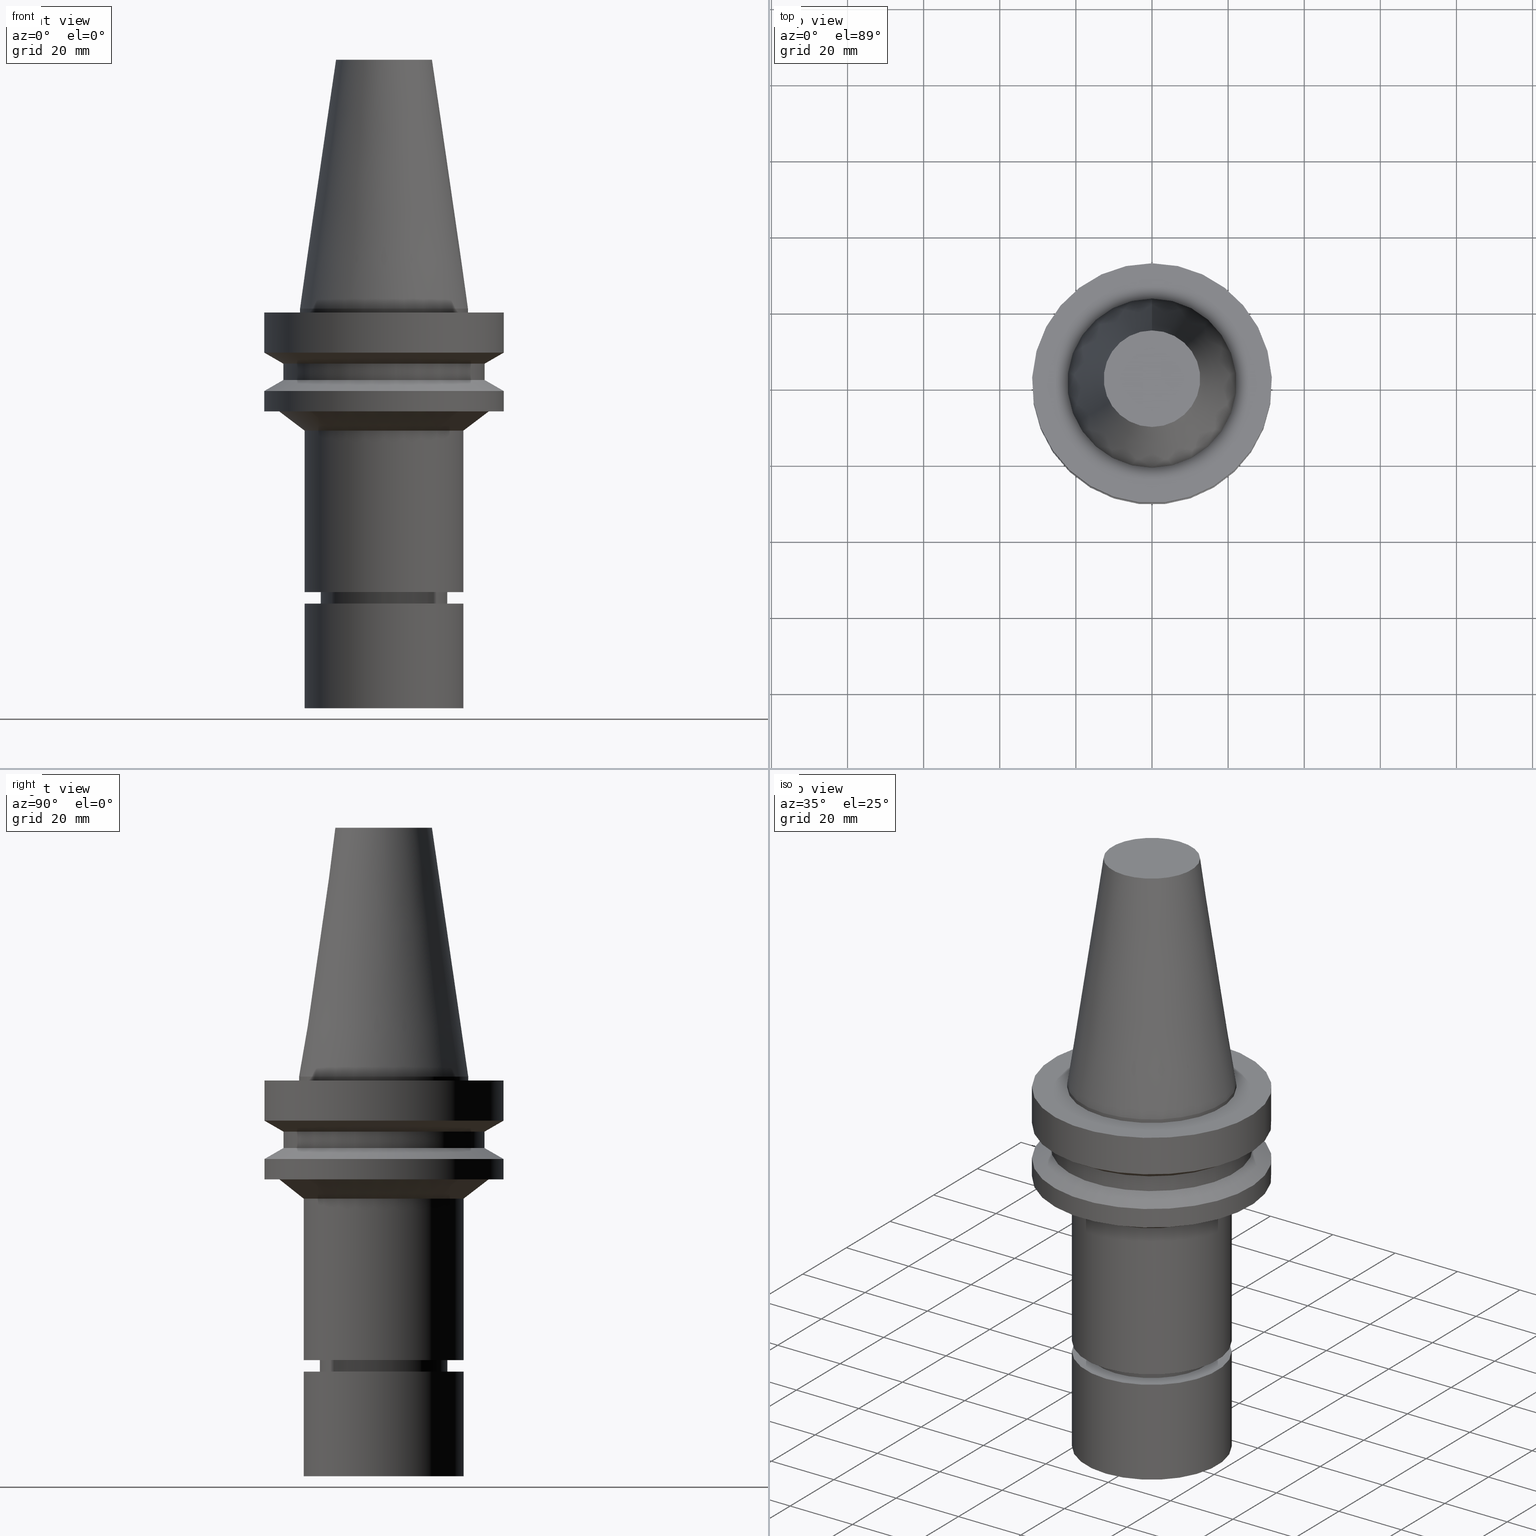
[diagram: canonical four-view strip — front | top / right | iso, engineering-drawing reading convention]
A machine part, canonical four-view strip (front | top / right | iso — engineering-drawing reading convention). The complete STEP part file that produces these views, byte-faithful:
ISO-10303-21;
HEADER;
FILE_DESCRIPTION((''),'1');
FILE_NAME('V:/90_\X2\53D65F9730C730FC30BF\X0\/00_\X2\6DE18DEF30C730FC30BF\X0\/ALL/BBT-BKUS\X2\FF76FF80FF9BFF78FF9E752852A05DE556F3\X0\201801/BBT40-MEGAER/BBT40-MEGAER25-105NL.stp','2018-02-07T02:19:38',(''),(''),'Spatial Interop R21 SP3','Kubotek KeyCreator 2011 V10.0.2 (22737)',' ');
FILE_SCHEMA(('automotive_design'));
ENDSEC;
DATA;
#1=MECHANICAL_DESIGN_GEOMETRIC_PRESENTATION_REPRESENTATION(' ',(#14,#15,#16,#17,#18,#19,#20,#21,#22,#23,#24,#25,#26,#27,#28,#29,#30,#31,#32,#33,#34,#35,#36,#37,#38,#39,#40,#41,#42,#43,#44,#45,#46,#47,#48,#49,#50,#51,#52,#53,#54,#55),#10);
#2=PRODUCT_DEFINITION_CONTEXT('',#56,'design');
#3=APPLICATION_PROTOCOL_DEFINITION('INTERNATIONAL STANDARD','automotive_design',1994,#56);
#4=PRODUCT_CATEGORY_RELATIONSHIP('NONE','NONE',#57,#58);
#5=SHAPE_DEFINITION_REPRESENTATION(#59,#60);
#6=PRODUCT_DEFINITION_CONTEXT('',#61,'design');
#7=APPLICATION_PROTOCOL_DEFINITION('INTERNATIONAL STANDARD','automotive_design',1994,#61);
#8=PRODUCT_CATEGORY_RELATIONSHIP('NONE','NONE',#62,#63);
#9=SHAPE_DEFINITION_REPRESENTATION(#64,#65);
#10= (GEOMETRIC_REPRESENTATION_CONTEXT(3)GLOBAL_UNCERTAINTY_ASSIGNED_CONTEXT((#68))GLOBAL_UNIT_ASSIGNED_CONTEXT((#70,#71,#72))REPRESENTATION_CONTEXT('NONE','WORKSPACE'));
#14=STYLED_ITEM('',(#74,#75),#76);
#15=STYLED_ITEM('',(#77),#78);
#16=STYLED_ITEM('',(#79,#80),#81);
#17=STYLED_ITEM('',(#82),#83);
#18=STYLED_ITEM('',(#84,#85),#86);
#19=STYLED_ITEM('',(#87,#88),#89);
#20=STYLED_ITEM('',(#90,#91),#92);
#21=STYLED_ITEM('',(#93,#94),#95);
#22=STYLED_ITEM('',(#96,#97),#98);
#23=STYLED_ITEM('',(#99),#100);
#24=STYLED_ITEM('',(#101),#102);
#25=STYLED_ITEM('',(#103),#104);
#26=STYLED_ITEM('',(#105),#106);
#27=STYLED_ITEM('',(#107),#108);
#28=STYLED_ITEM('',(#109),#110);
#29=STYLED_ITEM('',(#111,#112),#113);
#30=STYLED_ITEM('',(#114,#115),#116);
#31=STYLED_ITEM('',(#117,#118),#119);
#32=STYLED_ITEM('',(#120,#121),#122);
#33=STYLED_ITEM('',(#123),#124);
#34=STYLED_ITEM('',(#125),#126);
#35=STYLED_ITEM('',(#127,#128),#129);
#36=STYLED_ITEM('',(#130,#131),#132);
#37=STYLED_ITEM('',(#133,#134),#135);
#38=STYLED_ITEM('',(#136,#137),#138);
#39=STYLED_ITEM('',(#139),#140);
#40=STYLED_ITEM('',(#141,#142),#143);
#41=STYLED_ITEM('',(#144),#145);
#42=STYLED_ITEM('',(#146,#147),#148);
#43=STYLED_ITEM('',(#149,#150),#151);
#44=STYLED_ITEM('',(#152,#153),#154);
#45=STYLED_ITEM('',(#155),#156);
#46=STYLED_ITEM('',(#157),#158);
#47=STYLED_ITEM('',(#159),#160);
#48=STYLED_ITEM('',(#161),#162);
#49=STYLED_ITEM('',(#163),#164);
#50=STYLED_ITEM('',(#165),#166);
#51=STYLED_ITEM('',(#167,#168),#169);
#52=STYLED_ITEM('',(#170),#171);
#53=STYLED_ITEM('',(#172,#173),#174);
#54=STYLED_ITEM('',(#175,#176),#177);
#55=STYLED_ITEM('',(#178,#179),#180);
#56=APPLICATION_CONTEXT(' ');
#57=PRODUCT_CATEGORY('part','NONE');
#58=PRODUCT_RELATED_PRODUCT_CATEGORY('detail',' ',(#181));
#59=PRODUCT_DEFINITION_SHAPE('NONE','NONE',#182);
#60=ADVANCED_BREP_SHAPE_REPRESENTATION('Unnamed[1]',(#174,#183),#10);
#61=APPLICATION_CONTEXT(' ');
#62=PRODUCT_CATEGORY('part','NONE');
#63=PRODUCT_RELATED_PRODUCT_CATEGORY('detail',' ',(#184));
#64=PRODUCT_DEFINITION_SHAPE('NONE','NONE',#185);
#65=ADVANCED_BREP_SHAPE_REPRESENTATION('Unnamed[1]',(#76,#186),#10);
#68=UNCERTAINTY_MEASURE_WITH_UNIT(LENGTH_MEASURE(1.0E-006),#70,'','');
#70= (CONVERSION_BASED_UNIT('MILLIMETRE',#189)LENGTH_UNIT()NAMED_UNIT(#192));
#71= (NAMED_UNIT(#194)PLANE_ANGLE_UNIT()SI_UNIT($,.RADIAN.));
#72= (NAMED_UNIT(#194)SOLID_ANGLE_UNIT()SI_UNIT($,.STERADIAN.));
#74=PRESENTATION_STYLE_ASSIGNMENT((#200));
#75=PRESENTATION_STYLE_ASSIGNMENT((#201));
#76=MANIFOLD_SOLID_BREP('Unnamed[1]',#202);
#77=PRESENTATION_STYLE_ASSIGNMENT((#203));
#78=EDGE_CURVE('Unnamed[1]',#204,#204,#205,.T.);
#79=PRESENTATION_STYLE_ASSIGNMENT((#206));
#80=PRESENTATION_STYLE_ASSIGNMENT((#207));
#81=ADVANCED_FACE('Unnamed[1]',(#208),#209,.T.);
#82=PRESENTATION_STYLE_ASSIGNMENT((#210));
#83=EDGE_CURVE('Unnamed[1]',#211,#211,#212,.T.);
#84=PRESENTATION_STYLE_ASSIGNMENT((#213));
#85=PRESENTATION_STYLE_ASSIGNMENT((#214));
#86=ADVANCED_FACE('Unnamed[1]',(#215),#216,.T.);
#87=PRESENTATION_STYLE_ASSIGNMENT((#217));
#88=PRESENTATION_STYLE_ASSIGNMENT((#218));
#89=ADVANCED_FACE('Unnamed[1]',(#219),#220,.T.);
#90=PRESENTATION_STYLE_ASSIGNMENT((#221));
#91=PRESENTATION_STYLE_ASSIGNMENT((#222));
#92=ADVANCED_FACE('Unnamed[1]',(#223,#224),#225,.T.);
#93=PRESENTATION_STYLE_ASSIGNMENT((#226));
#94=PRESENTATION_STYLE_ASSIGNMENT((#227));
#95=ADVANCED_FACE('Unnamed[1]',(#228,#229),#230,.T.);
#96=PRESENTATION_STYLE_ASSIGNMENT((#231));
#97=PRESENTATION_STYLE_ASSIGNMENT((#232));
#98=ADVANCED_FACE('Unnamed[1]',(#233,#234),#235,.T.);
#99=PRESENTATION_STYLE_ASSIGNMENT((#236));
#100=EDGE_CURVE('Unnamed[1]',#237,#237,#238,.T.);
#101=PRESENTATION_STYLE_ASSIGNMENT((#239));
#102=EDGE_CURVE('Unnamed[1]',#240,#240,#241,.T.);
#103=PRESENTATION_STYLE_ASSIGNMENT((#242));
#104=EDGE_CURVE('Unnamed[1]',#243,#243,#244,.T.);
#105=PRESENTATION_STYLE_ASSIGNMENT((#245));
#106=EDGE_CURVE('Unnamed[1]',#246,#246,#247,.T.);
#107=PRESENTATION_STYLE_ASSIGNMENT((#248));
#108=EDGE_CURVE('Unnamed[1]',#249,#249,#250,.T.);
#109=PRESENTATION_STYLE_ASSIGNMENT((#251));
#110=EDGE_CURVE('Unnamed[1]',#252,#252,#253,.T.);
#111=PRESENTATION_STYLE_ASSIGNMENT((#254));
#112=PRESENTATION_STYLE_ASSIGNMENT((#255));
#113=ADVANCED_FACE('Unnamed[1]',(#256),#257,.T.);
#114=PRESENTATION_STYLE_ASSIGNMENT((#258));
#115=PRESENTATION_STYLE_ASSIGNMENT((#259));
#116=ADVANCED_FACE('Unnamed[1]',(#260,#261),#262,.T.);
#117=PRESENTATION_STYLE_ASSIGNMENT((#263));
#118=PRESENTATION_STYLE_ASSIGNMENT((#264));
#119=ADVANCED_FACE('Unnamed[1]',(#265,#266),#267,.T.);
#120=PRESENTATION_STYLE_ASSIGNMENT((#268));
#121=PRESENTATION_STYLE_ASSIGNMENT((#269));
#122=ADVANCED_FACE('Unnamed[1]',(#270,#271),#272,.T.);
#123=PRESENTATION_STYLE_ASSIGNMENT((#273));
#124=EDGE_CURVE('Unnamed[1]',#274,#274,#275,.T.);
#125=PRESENTATION_STYLE_ASSIGNMENT((#276));
#126=EDGE_CURVE('Unnamed[1]',#277,#277,#278,.T.);
#127=PRESENTATION_STYLE_ASSIGNMENT((#279));
#128=PRESENTATION_STYLE_ASSIGNMENT((#280));
#129=ADVANCED_FACE('Unnamed[1]',(#281,#282),#283,.T.);
#130=PRESENTATION_STYLE_ASSIGNMENT((#284));
#131=PRESENTATION_STYLE_ASSIGNMENT((#285));
#132=ADVANCED_FACE('Unnamed[1]',(#286,#287),#288,.T.);
#133=PRESENTATION_STYLE_ASSIGNMENT((#289));
#134=PRESENTATION_STYLE_ASSIGNMENT((#290));
#135=ADVANCED_FACE('Unnamed[1]',(#291,#292),#293,.T.);
#136=PRESENTATION_STYLE_ASSIGNMENT((#294));
#137=PRESENTATION_STYLE_ASSIGNMENT((#295));
#138=ADVANCED_FACE('Unnamed[1]',(#296,#297),#298,.T.);
#139=PRESENTATION_STYLE_ASSIGNMENT((#299));
#140=EDGE_CURVE('Unnamed[1]',#300,#300,#301,.T.);
#141=PRESENTATION_STYLE_ASSIGNMENT((#302));
#142=PRESENTATION_STYLE_ASSIGNMENT((#303));
#143=ADVANCED_FACE('Unnamed[1]',(#304,#305),#306,.T.);
#144=PRESENTATION_STYLE_ASSIGNMENT((#307));
#145=EDGE_CURVE('Unnamed[1]',#308,#308,#309,.T.);
#146=PRESENTATION_STYLE_ASSIGNMENT((#310));
#147=PRESENTATION_STYLE_ASSIGNMENT((#311));
#148=ADVANCED_FACE('Unnamed[1]',(#312,#313),#314,.T.);
#149=PRESENTATION_STYLE_ASSIGNMENT((#315));
#150=PRESENTATION_STYLE_ASSIGNMENT((#316));
#151=ADVANCED_FACE('Unnamed[1]',(#317,#318),#319,.T.);
#152=PRESENTATION_STYLE_ASSIGNMENT((#320));
#153=PRESENTATION_STYLE_ASSIGNMENT((#321));
#154=ADVANCED_FACE('Unnamed[1]',(#322,#323),#324,.T.);
#155=PRESENTATION_STYLE_ASSIGNMENT((#325));
#156=EDGE_CURVE('Unnamed[1]',#326,#326,#327,.T.);
#157=PRESENTATION_STYLE_ASSIGNMENT((#328));
#158=EDGE_CURVE('Unnamed[1]',#329,#329,#330,.T.);
#159=PRESENTATION_STYLE_ASSIGNMENT((#331));
#160=EDGE_CURVE('Unnamed[1]',#332,#332,#333,.T.);
#161=PRESENTATION_STYLE_ASSIGNMENT((#334));
#162=EDGE_CURVE('Unnamed[1]',#335,#335,#336,.T.);
#163=PRESENTATION_STYLE_ASSIGNMENT((#337));
#164=EDGE_CURVE('Unnamed[1]',#338,#338,#339,.T.);
#165=PRESENTATION_STYLE_ASSIGNMENT((#340));
#166=EDGE_CURVE('Unnamed[1]',#341,#341,#342,.T.);
#167=PRESENTATION_STYLE_ASSIGNMENT((#343));
#168=PRESENTATION_STYLE_ASSIGNMENT((#344));
#169=ADVANCED_FACE('Unnamed[1]',(#345,#346),#347,.T.);
#170=PRESENTATION_STYLE_ASSIGNMENT((#348));
#171=EDGE_CURVE('Unnamed[1]',#349,#349,#350,.T.);
#172=PRESENTATION_STYLE_ASSIGNMENT((#351));
#173=PRESENTATION_STYLE_ASSIGNMENT((#352));
#174=MANIFOLD_SOLID_BREP('Unnamed[1]',#353);
#175=PRESENTATION_STYLE_ASSIGNMENT((#354));
#176=PRESENTATION_STYLE_ASSIGNMENT((#355));
#177=ADVANCED_FACE('Unnamed[1]',(#356,#357),#358,.T.);
#178=PRESENTATION_STYLE_ASSIGNMENT((#359));
#179=PRESENTATION_STYLE_ASSIGNMENT((#360));
#180=ADVANCED_FACE('Unnamed[1]',(#361,#362),#363,.T.);
#181=PRODUCT('Unnamed[1]','Unnamed[1]','PART-Unnamed[1]-DESC',(#364));
#182=PRODUCT_DEFINITION('NONE','NONE',#365,#2);
#183=AXIS2_PLACEMENT_3D('',#366,#367,#368);
#184=PRODUCT('Unnamed[1]','Unnamed[1]','PART-Unnamed[1]-DESC',(#369));
#185=PRODUCT_DEFINITION('NONE','NONE',#370,#6);
#186=AXIS2_PLACEMENT_3D('',#371,#372,#373);
#189=LENGTH_MEASURE_WITH_UNIT(LENGTH_MEASURE(1.0),#374);
#192=DIMENSIONAL_EXPONENTS(1.0,0.0,0.0,0.0,0.0,0.0,0.0);
#194=DIMENSIONAL_EXPONENTS(0.0,0.0,0.0,0.0,0.0,0.0,0.0);
#200=SURFACE_STYLE_USAGE(.BOTH.,#375);
#201=CURVE_STYLE('',#376,POSITIVE_LENGTH_MEASURE(1000.0),#377);
#202=CLOSED_SHELL('',(#113,#86,#143));
#203=CURVE_STYLE('',#378,POSITIVE_LENGTH_MEASURE(1000.0),#379);
#204=VERTEX_POINT('',#380);
#205=CIRCLE('',#381,26.5);
#206=SURFACE_STYLE_USAGE(.BOTH.,#382);
#207=CURVE_STYLE('',#383,POSITIVE_LENGTH_MEASURE(1000.0),#384);
#208=FACE_OUTER_BOUND('',#385,.T.);
#209=PLANE('',#386);
#210=CURVE_STYLE('',#387,POSITIVE_LENGTH_MEASURE(1000.0),#388);
#211=VERTEX_POINT('',#389);
#212=CIRCLE('',#390,21.0000000000004);
#213=SURFACE_STYLE_USAGE(.BOTH.,#391);
#214=CURVE_STYLE('',#392,POSITIVE_LENGTH_MEASURE(1000.0),#393);
#215=FACE_OUTER_BOUND('',#394,.T.);
#216=PLANE('',#395);
#217=SURFACE_STYLE_USAGE(.BOTH.,#396);
#218=CURVE_STYLE('',#397,POSITIVE_LENGTH_MEASURE(1000.0),#398);
#219=FACE_OUTER_BOUND('',#399,.T.);
#220=PLANE('',#400);
#221=SURFACE_STYLE_USAGE(.BOTH.,#401);
#222=CURVE_STYLE('',#402,POSITIVE_LENGTH_MEASURE(1000.0),#403);
#223=FACE_BOUND('',#404,.T.);
#224=FACE_BOUND('',#405,.T.);
#225=CONICAL_SURFACE('',#406,29.0000000000003,1.04719755119651);
#226=SURFACE_STYLE_USAGE(.BOTH.,#407);
#227=CURVE_STYLE('',#408,POSITIVE_LENGTH_MEASURE(1000.0),#409);
#228=FACE_BOUND('',#410,.T.);
#229=FACE_BOUND('',#411,.T.);
#230=CONICAL_SURFACE('',#412,24.285926013083,0.914225393497885);
#231=SURFACE_STYLE_USAGE(.BOTH.,#413);
#232=CURVE_STYLE('',#414,POSITIVE_LENGTH_MEASURE(1000.0),#415);
#233=FACE_BOUND('',#416,.T.);
#234=FACE_BOUND('',#417,.T.);
#235=CONICAL_SURFACE('',#418,16.3750000000008,1.04719755120064);
#236=CURVE_STYLE('',#419,POSITIVE_LENGTH_MEASURE(1000.0),#420);
#237=VERTEX_POINT('',#421);
#238=CIRCLE('',#422,21.0000000000001);
#239=CURVE_STYLE('',#423,POSITIVE_LENGTH_MEASURE(1000.0),#424);
#240=VERTEX_POINT('',#425);
#241=CIRCLE('',#426,31.5000000000003);
#242=CURVE_STYLE('',#427,POSITIVE_LENGTH_MEASURE(1000.0),#428);
#243=VERTEX_POINT('',#429);
#244=CIRCLE('',#430,26.4999999999994);
#245=CURVE_STYLE('',#431,POSITIVE_LENGTH_MEASURE(1000.0),#432);
#246=VERTEX_POINT('',#433);
#247=CIRCLE('',#434,16.0);
#248=CURVE_STYLE('',#435,POSITIVE_LENGTH_MEASURE(1000.0),#436);
#249=VERTEX_POINT('',#437);
#250=CIRCLE('',#438,22.225);
#251=CURVE_STYLE('',#439,POSITIVE_LENGTH_MEASURE(1000.0),#440);
#252=VERTEX_POINT('',#441);
#253=CIRCLE('',#442,16.0);
#254=SURFACE_STYLE_USAGE(.BOTH.,#443);
#255=CURVE_STYLE('',#444,POSITIVE_LENGTH_MEASURE(1000.0),#445);
#256=FACE_OUTER_BOUND('',#446,.T.);
#257=PLANE('',#447);
#258=SURFACE_STYLE_USAGE(.BOTH.,#448);
#259=CURVE_STYLE('',#449,POSITIVE_LENGTH_MEASURE(1000.0),#450);
#260=FACE_BOUND('',#451,.T.);
#261=FACE_BOUND('',#452,.T.);
#262=CYLINDRICAL_SURFACE('',#453,16.0);
#263=SURFACE_STYLE_USAGE(.BOTH.,#454);
#264=CURVE_STYLE('',#455,POSITIVE_LENGTH_MEASURE(1000.0),#456);
#265=FACE_BOUND('',#457,.T.);
#266=FACE_BOUND('',#458,.T.);
#267=CYLINDRICAL_SURFACE('',#459,21.0000000000003);
#268=SURFACE_STYLE_USAGE(.BOTH.,#460);
#269=CURVE_STYLE('',#461,POSITIVE_LENGTH_MEASURE(1000.0),#462);
#270=FACE_OUTER_BOUND('',#463,.T.);
#271=FACE_BOUND('',#464,.T.);
#272=PLANE('',#465);
#273=CURVE_STYLE('',#466,POSITIVE_LENGTH_MEASURE(1000.0),#467);
#274=VERTEX_POINT('',#468);
#275=CIRCLE('',#469,16.7500000000016);
#276=CURVE_STYLE('',#470,POSITIVE_LENGTH_MEASURE(1000.0),#471);
#277=VERTEX_POINT('',#472);
#278=CIRCLE('',#473,31.4999999999996);
#279=SURFACE_STYLE_USAGE(.BOTH.,#474);
#280=CURVE_STYLE('',#475,POSITIVE_LENGTH_MEASURE(1000.0),#476);
#281=FACE_BOUND('',#477,.T.);
#282=FACE_BOUND('',#478,.T.);
#283=CONICAL_SURFACE('',#479,17.45625,0.144812498238936);
#284=SURFACE_STYLE_USAGE(.BOTH.,#480);
#285=CURVE_STYLE('',#481,POSITIVE_LENGTH_MEASURE(1000.0),#482);
#286=FACE_BOUND('',#483,.T.);
#287=FACE_BOUND('',#484,.T.);
#288=CYLINDRICAL_SURFACE('',#485,26.4999999999997);
#289=SURFACE_STYLE_USAGE(.BOTH.,#486);
#290=CURVE_STYLE('',#487,POSITIVE_LENGTH_MEASURE(1000.0),#488);
#291=FACE_BOUND('',#489,.T.);
#292=FACE_BOUND('',#490,.T.);
#293=CYLINDRICAL_SURFACE('',#491,31.5000000000005);
#294=SURFACE_STYLE_USAGE(.BOTH.,#492);
#295=CURVE_STYLE('',#493,POSITIVE_LENGTH_MEASURE(1000.0),#494);
#296=FACE_BOUND('',#495,.T.);
#297=FACE_BOUND('',#496,.T.);
#298=CONICAL_SURFACE('',#497,15.4500000000003,0.523598775598048);
#299=CURVE_STYLE('',#498,POSITIVE_LENGTH_MEASURE(1000.0),#499);
#300=VERTEX_POINT('',#500);
#301=CIRCLE('',#501,16.7499999999907);
#302=SURFACE_STYLE_USAGE(.BOTH.,#502);
#303=CURVE_STYLE('',#503,POSITIVE_LENGTH_MEASURE(1000.0),#504);
#304=FACE_BOUND('',#505,.T.);
#305=FACE_BOUND('',#506,.T.);
#306=CYLINDRICAL_SURFACE('',#507,21.0);
#307=CURVE_STYLE('',#508,POSITIVE_LENGTH_MEASURE(1000.0),#509);
#308=VERTEX_POINT('',#510);
#309=CIRCLE('',#511,21.0);
#310=SURFACE_STYLE_USAGE(.BOTH.,#512);
#311=CURVE_STYLE('',#513,POSITIVE_LENGTH_MEASURE(1000.0),#514);
#312=FACE_BOUND('',#515,.T.);
#313=FACE_BOUND('',#516,.T.);
#314=CYLINDRICAL_SURFACE('',#517,22.225);
#315=SURFACE_STYLE_USAGE(.BOTH.,#518);
#316=CURVE_STYLE('',#519,POSITIVE_LENGTH_MEASURE(1000.0),#520);
#317=FACE_BOUND('',#521,.T.);
#318=FACE_OUTER_BOUND('',#522,.T.);
#319=PLANE('',#523);
#320=SURFACE_STYLE_USAGE(.BOTH.,#524);
#321=CURVE_STYLE('',#525,POSITIVE_LENGTH_MEASURE(1000.0),#526);
#322=FACE_BOUND('',#527,.T.);
#323=FACE_BOUND('',#528,.T.);
#324=CYLINDRICAL_SURFACE('',#529,31.5);
#325=CURVE_STYLE('',#530,POSITIVE_LENGTH_MEASURE(1000.0),#531);
#326=VERTEX_POINT('',#532);
#327=CIRCLE('',#533,22.225);
#328=CURVE_STYLE('',#534,POSITIVE_LENGTH_MEASURE(1000.0),#535);
#329=VERTEX_POINT('',#536);
#330=CIRCLE('',#537,31.5000000000003);
#331=CURVE_STYLE('',#538,POSITIVE_LENGTH_MEASURE(1000.0),#539);
#332=VERTEX_POINT('',#540);
#333=CIRCLE('',#541,14.9000000000006);
#334=CURVE_STYLE('',#542,POSITIVE_LENGTH_MEASURE(1000.0),#543);
#335=VERTEX_POINT('',#544);
#336=CIRCLE('',#545,21.0);
#337=CURVE_STYLE('',#546,POSITIVE_LENGTH_MEASURE(1000.0),#547);
#338=VERTEX_POINT('',#548);
#339=CIRCLE('',#549,31.5000000000006);
#340=CURVE_STYLE('',#550,POSITIVE_LENGTH_MEASURE(1000.0),#551);
#341=VERTEX_POINT('',#552);
#342=CIRCLE('',#553,27.5718520261655);
#343=SURFACE_STYLE_USAGE(.BOTH.,#554);
#344=CURVE_STYLE('',#555,POSITIVE_LENGTH_MEASURE(1000.0),#556);
#345=FACE_BOUND('',#557,.T.);
#346=FACE_BOUND('',#558,.T.);
#347=CYLINDRICAL_SURFACE('',#559,16.7499999999961);
#348=CURVE_STYLE('',#560,POSITIVE_LENGTH_MEASURE(1000.0),#561);
#349=VERTEX_POINT('',#562);
#350=CIRCLE('',#563,12.6875000000001);
#351=SURFACE_STYLE_USAGE(.BOTH.,#564);
#352=CURVE_STYLE('',#565,POSITIVE_LENGTH_MEASURE(1000.0),#566);
#353=CLOSED_SHELL('',(#81,#129,#148,#122,#154,#177,#132,#92,#135,#180,#95,#119,#151,#169,#98,#116,#138,#89));
#354=SURFACE_STYLE_USAGE(.BOTH.,#567);
#355=CURVE_STYLE('',#568,POSITIVE_LENGTH_MEASURE(1000.0),#569);
#356=FACE_BOUND('',#570,.T.);
#357=FACE_BOUND('',#571,.T.);
#358=CONICAL_SURFACE('',#572,28.9999999999999,1.04719755119657);
#359=SURFACE_STYLE_USAGE(.BOTH.,#573);
#360=CURVE_STYLE('',#574,POSITIVE_LENGTH_MEASURE(1000.0),#575);
#361=FACE_BOUND('',#576,.T.);
#362=FACE_OUTER_BOUND('',#577,.T.);
#363=PLANE('',#578);
#364=PRODUCT_CONTEXT('',#56,'mechanical');
#365=PRODUCT_DEFINITION_FORMATION_WITH_SPECIFIED_SOURCE(' ','NONE',#181,.NOT_KNOWN.);
#366=CARTESIAN_POINT('',(0.0,0.0,0.0));
#367=DIRECTION('',(0.0,0.0,1.0));
#368=DIRECTION('',(1.0,0.0,0.0));
#369=PRODUCT_CONTEXT('',#61,'mechanical');
#370=PRODUCT_DEFINITION_FORMATION_WITH_SPECIFIED_SOURCE(' ','NONE',#184,.NOT_KNOWN.);
#371=CARTESIAN_POINT('',(0.0,0.0,0.0));
#372=DIRECTION('',(0.0,0.0,1.0));
#373=DIRECTION('',(1.0,0.0,0.0));
#374= (NAMED_UNIT(#192)LENGTH_UNIT()SI_UNIT(.MILLI.,.METRE.));
#375=SURFACE_SIDE_STYLE('',(#580));
#376=DRAUGHTING_PRE_DEFINED_CURVE_FONT('continuous');
#377=COLOUR_RGB('',0.0,1.0,0.0);
#378=DRAUGHTING_PRE_DEFINED_CURVE_FONT('continuous');
#379=COLOUR_RGB('',0.0,1.0,0.0);
#380=CARTESIAN_POINT('',(1.1479681728942E-015,26.5,-18.7477430013855));
#381=AXIS2_PLACEMENT_3D('',#581,#582,#583);
#382=SURFACE_SIDE_STYLE('',(#584));
#383=DRAUGHTING_PRE_DEFINED_CURVE_FONT('continuous');
#384=COLOUR_RGB('',0.0,1.0,0.0);
#385=EDGE_LOOP('',(#585));
#386=AXIS2_PLACEMENT_3D('',#586,#587,#588);
#387=DRAUGHTING_PRE_DEFINED_CURVE_FONT('continuous');
#388=COLOUR_RGB('',0.0,1.0,0.0);
#389=CARTESIAN_POINT('',(1.96338026992049E-015,21.0000000000005,-32.0644331294128));
#390=AXIS2_PLACEMENT_3D('',#589,#590,#591);
#391=SURFACE_SIDE_STYLE('',(#592));
#392=DRAUGHTING_PRE_DEFINED_CURVE_FONT('continuous');
#393=COLOUR_RGB('',0.0,1.0,0.0);
#394=EDGE_LOOP('',(#593));
#395=AXIS2_PLACEMENT_3D('',#594,#595,#596);
#396=SURFACE_SIDE_STYLE('',(#597));
#397=DRAUGHTING_PRE_DEFINED_CURVE_FONT('continuous');
#398=COLOUR_RGB('',0.0,1.0,0.0);
#399=EDGE_LOOP('',(#598));
#400=AXIS2_PLACEMENT_3D('',#599,#600,#601);
#401=SURFACE_SIDE_STYLE('',(#602));
#402=DRAUGHTING_PRE_DEFINED_CURVE_FONT('continuous');
#403=COLOUR_RGB('',0.0,1.0,0.0);
#404=EDGE_LOOP('',(#603));
#405=EDGE_LOOP('',(#604));
#406=AXIS2_PLACEMENT_3D('',#605,#606,#607);
#407=SURFACE_SIDE_STYLE('',(#608));
#408=DRAUGHTING_PRE_DEFINED_CURVE_FONT('continuous');
#409=COLOUR_RGB('',0.0,1.0,0.0);
#410=EDGE_LOOP('',(#609));
#411=EDGE_LOOP('',(#610));
#412=AXIS2_PLACEMENT_3D('',#611,#612,#613);
#413=SURFACE_SIDE_STYLE('',(#614));
#414=DRAUGHTING_PRE_DEFINED_CURVE_FONT('continuous');
#415=COLOUR_RGB('',0.0,1.0,0.0);
#416=EDGE_LOOP('',(#615));
#417=EDGE_LOOP('',(#616));
#418=AXIS2_PLACEMENT_3D('',#617,#618,#619);
#419=DRAUGHTING_PRE_DEFINED_CURVE_FONT('continuous');
#420=COLOUR_RGB('',0.0,1.0,0.0);
#421=CARTESIAN_POINT('',(4.56180932682389E-015,21.0000000000002,-74.4999999999999));
#422=AXIS2_PLACEMENT_3D('',#620,#621,#622);
#423=DRAUGHTING_PRE_DEFINED_CURVE_FONT('continuous');
#424=COLOUR_RGB('',0.0,1.0,0.0);
#425=CARTESIAN_POINT('',(1.65327317884891E-015,31.5000000000004,-26.9999999999998));
#426=AXIS2_PLACEMENT_3D('',#623,#624,#625);
#427=DRAUGHTING_PRE_DEFINED_CURVE_FONT('continuous');
#428=COLOUR_RGB('',0.0,1.0,0.0);
#429=CARTESIAN_POINT('',(8.8494551369045E-016,26.4999999999995,-14.4522569986152));
#430=AXIS2_PLACEMENT_3D('',#626,#627,#628);
#431=DRAUGHTING_PRE_DEFINED_CURVE_FONT('continuous');
#432=COLOUR_RGB('',0.0,1.0,0.0);
#433=CARTESIAN_POINT('',(4.95371697258611E-015,16.0,-80.9003375672901));
#434=AXIS2_PLACEMENT_3D('',#629,#630,#631);
#435=DRAUGHTING_PRE_DEFINED_CURVE_FONT('continuous');
#436=COLOUR_RGB('',0.0,1.0,0.0);
#437=CARTESIAN_POINT('',(1.71319921032766E-029,22.2250000000001,-2.8153873565375E-013));
#438=AXIS2_PLACEMENT_3D('',#632,#633,#634);
#439=DRAUGHTING_PRE_DEFINED_CURVE_FONT('continuous');
#440=COLOUR_RGB('',0.0,1.0,0.0);
#441=CARTESIAN_POINT('',(5.68816255169872E-015,16.0,-92.8947441116744));
#442=AXIS2_PLACEMENT_3D('',#635,#636,#637);
#443=SURFACE_SIDE_STYLE('',(#638));
#444=DRAUGHTING_PRE_DEFINED_CURVE_FONT('continuous');
#445=COLOUR_RGB('',0.0,1.0,0.0);
#446=EDGE_LOOP('',(#639));
#447=AXIS2_PLACEMENT_3D('',#640,#641,#642);
#448=SURFACE_SIDE_STYLE('',(#643));
#449=DRAUGHTING_PRE_DEFINED_CURVE_FONT('continuous');
#450=COLOUR_RGB('',0.0,1.0,0.0);
#451=EDGE_LOOP('',(#644));
#452=EDGE_LOOP('',(#645));
#453=AXIS2_PLACEMENT_3D('',#646,#647,#648);
#454=SURFACE_SIDE_STYLE('',(#649));
#455=DRAUGHTING_PRE_DEFINED_CURVE_FONT('continuous');
#456=COLOUR_RGB('',0.0,1.0,0.0);
#457=EDGE_LOOP('',(#650));
#458=EDGE_LOOP('',(#651));
#459=AXIS2_PLACEMENT_3D('',#652,#653,#654);
#460=SURFACE_SIDE_STYLE('',(#655));
#461=DRAUGHTING_PRE_DEFINED_CURVE_FONT('continuous');
#462=COLOUR_RGB('',0.0,1.0,0.0);
#463=EDGE_LOOP('',(#656));
#464=EDGE_LOOP('',(#657));
#465=AXIS2_PLACEMENT_3D('',#658,#659,#660);
#466=DRAUGHTING_PRE_DEFINED_CURVE_FONT('continuous');
#467=COLOUR_RGB('',0.0,1.0,0.0);
#468=CARTESIAN_POINT('',(4.92720259161817E-015,16.7500000000017,-80.4673248654009));
#469=AXIS2_PLACEMENT_3D('',#661,#662,#663);
#470=DRAUGHTING_PRE_DEFINED_CURVE_FONT('continuous');
#471=COLOUR_RGB('',0.0,1.0,0.0);
#472=CARTESIAN_POINT('',(6.12323399573568E-017,31.4999999999997,-0.999999999999825));
#473=AXIS2_PLACEMENT_3D('',#664,#665,#666);
#474=SURFACE_SIDE_STYLE('',(#667));
#475=DRAUGHTING_PRE_DEFINED_CURVE_FONT('continuous');
#476=COLOUR_RGB('',0.0,1.0,0.0);
#477=EDGE_LOOP('',(#668));
#478=EDGE_LOOP('',(#669));
#479=AXIS2_PLACEMENT_3D('',#670,#671,#672);
#480=SURFACE_SIDE_STYLE('',(#673));
#481=DRAUGHTING_PRE_DEFINED_CURVE_FONT('continuous');
#482=COLOUR_RGB('',0.0,1.0,0.0);
#483=EDGE_LOOP('',(#674));
#484=EDGE_LOOP('',(#675));
#485=AXIS2_PLACEMENT_3D('',#676,#677,#678);
#486=SURFACE_SIDE_STYLE('',(#679));
#487=DRAUGHTING_PRE_DEFINED_CURVE_FONT('continuous');
#488=COLOUR_RGB('',0.0,1.0,0.0);
#489=EDGE_LOOP('',(#680));
#490=EDGE_LOOP('',(#681));
#491=AXIS2_PLACEMENT_3D('',#682,#683,#684);
#492=SURFACE_SIDE_STYLE('',(#685));
#493=DRAUGHTING_PRE_DEFINED_CURVE_FONT('continuous');
#494=COLOUR_RGB('',0.0,1.0,0.0);
#495=EDGE_LOOP('',(#686));
#496=EDGE_LOOP('',(#687));
#497=AXIS2_PLACEMENT_3D('',#688,#689,#690);
#498=DRAUGHTING_PRE_DEFINED_CURVE_FONT('continuous');
#499=COLOUR_RGB('',0.0,1.0,0.0);
#500=CARTESIAN_POINT('',(4.56180932682384E-015,16.7499999999907,-74.4999999999992));
#501=AXIS2_PLACEMENT_3D('',#691,#692,#693);
#502=SURFACE_SIDE_STYLE('',(#694));
#503=DRAUGHTING_PRE_DEFINED_CURVE_FONT('continuous');
#504=COLOUR_RGB('',0.0,1.0,0.0);
#505=EDGE_LOOP('',(#695));
#506=EDGE_LOOP('',(#696));
#507=AXIS2_PLACEMENT_3D('',#697,#698,#699);
#508=DRAUGHTING_PRE_DEFINED_CURVE_FONT('continuous');
#509=COLOUR_RGB('',0.0,1.0,0.0);
#510=CARTESIAN_POINT('',(6.4293956955236E-015,21.0,-105.0));
#511=AXIS2_PLACEMENT_3D('',#700,#701,#702);
#512=SURFACE_SIDE_STYLE('',(#703));
#513=DRAUGHTING_PRE_DEFINED_CURVE_FONT('continuous');
#514=COLOUR_RGB('',0.0,1.0,0.0);
#515=EDGE_LOOP('',(#704));
#516=EDGE_LOOP('',(#705));
#517=AXIS2_PLACEMENT_3D('',#706,#707,#708);
#518=SURFACE_SIDE_STYLE('',(#709));
#519=DRAUGHTING_PRE_DEFINED_CURVE_FONT('continuous');
#520=COLOUR_RGB('',0.0,1.0,0.0);
#521=EDGE_LOOP('',(#710));
#522=EDGE_LOOP('',(#711));
#523=AXIS2_PLACEMENT_3D('',#712,#713,#714);
#524=SURFACE_SIDE_STYLE('',(#715));
#525=DRAUGHTING_PRE_DEFINED_CURVE_FONT('continuous');
#526=COLOUR_RGB('',0.0,1.0,0.0);
#527=EDGE_LOOP('',(#716));
#528=EDGE_LOOP('',(#717));
#529=AXIS2_PLACEMENT_3D('',#718,#719,#720);
#530=DRAUGHTING_PRE_DEFINED_CURVE_FONT('continuous');
#531=COLOUR_RGB('',0.0,1.0,0.0);
#532=CARTESIAN_POINT('',(6.12323399573622E-017,22.2250000000001,-0.999999999999912));
#533=AXIS2_PLACEMENT_3D('',#721,#722,#723);
#534=DRAUGHTING_PRE_DEFINED_CURVE_FONT('continuous');
#535=COLOUR_RGB('',0.0,1.0,0.0);
#536=CARTESIAN_POINT('',(7.08182973902924E-016,31.5000000000004,-11.5655056526664));
#537=AXIS2_PLACEMENT_3D('',#724,#725,#726);
#538=DRAUGHTING_PRE_DEFINED_CURVE_FONT('continuous');
#539=COLOUR_RGB('',0.0,1.0,0.0);
#540=CARTESIAN_POINT('',(5.80482582795847E-015,14.9000000000007,-94.8000000000002));
#541=AXIS2_PLACEMENT_3D('',#727,#728,#729);
#542=DRAUGHTING_PRE_DEFINED_CURVE_FONT('continuous');
#543=COLOUR_RGB('',0.0,1.0,0.0);
#544=CARTESIAN_POINT('',(4.74550634669599E-015,21.0,-77.5));
#545=AXIS2_PLACEMENT_3D('',#730,#731,#732);
#546=DRAUGHTING_PRE_DEFINED_CURVE_FONT('continuous');
#547=COLOUR_RGB('',0.0,1.0,0.0);
#548=CARTESIAN_POINT('',(1.32473071268174E-015,31.5000000000007,-21.6344943473346));
#549=AXIS2_PLACEMENT_3D('',#733,#734,#735);
#550=DRAUGHTING_PRE_DEFINED_CURVE_FONT('continuous');
#551=COLOUR_RGB('',0.0,1.0,0.0);
#552=CARTESIAN_POINT('',(1.65327317884891E-015,27.5718520261655,-26.9999999999998));
#553=AXIS2_PLACEMENT_3D('',#736,#737,#738);
#554=SURFACE_SIDE_STYLE('',(#739));
#555=DRAUGHTING_PRE_DEFINED_CURVE_FONT('continuous');
#556=COLOUR_RGB('',0.0,1.0,0.0);
#557=EDGE_LOOP('',(#740));
#558=EDGE_LOOP('',(#741));
#559=AXIS2_PLACEMENT_3D('',#742,#743,#744);
#560=DRAUGHTING_PRE_DEFINED_CURVE_FONT('continuous');
#561=COLOUR_RGB('',0.0,1.0,0.0);
#562=CARTESIAN_POINT('',(-4.00459503321185E-015,12.6875000000002,65.4000000000001));
#563=AXIS2_PLACEMENT_3D('',#745,#746,#747);
#564=SURFACE_SIDE_STYLE('',(#748));
#565=DRAUGHTING_PRE_DEFINED_CURVE_FONT('continuous');
#566=COLOUR_RGB('',0.0,1.0,0.0);
#567=SURFACE_SIDE_STYLE('',(#749));
#568=DRAUGHTING_PRE_DEFINED_CURVE_FONT('continuous');
#569=COLOUR_RGB('',0.0,1.0,0.0);
#570=EDGE_LOOP('',(#750));
#571=EDGE_LOOP('',(#751));
#572=AXIS2_PLACEMENT_3D('',#752,#753,#754);
#573=SURFACE_SIDE_STYLE('',(#755));
#574=DRAUGHTING_PRE_DEFINED_CURVE_FONT('continuous');
#575=COLOUR_RGB('',0.0,1.0,0.0);
#576=EDGE_LOOP('',(#756));
#577=EDGE_LOOP('',(#757));
#578=AXIS2_PLACEMENT_3D('',#758,#759,#760);
#580=SURFACE_STYLE_FILL_AREA(#761);
#581=CARTESIAN_POINT('',(1.1479681728942E-015,6.60277246265659E-014,-18.7477430013855));
#582=DIRECTION('',(6.12323399573677E-017,-1.30838707338598E-016,-1.0));
#583=DIRECTION('',(3.18440747656829E-033,1.0,-1.30838707338598E-016));
#584=SURFACE_STYLE_FILL_AREA(#762);
#585=ORIENTED_EDGE('',*,*,#171,.F.);
#586=CARTESIAN_POINT('',(-4.00459503321185E-015,6.34375000000014,65.4000000000001));
#587=DIRECTION('',(-6.12323399573677E-017,9.97602686800683E-016,1.0));
#588=DIRECTION('',(-5.62583941297938E-032,-1.0,9.97602686800683E-016));
#589=CARTESIAN_POINT('',(1.96338026992049E-015,6.42853861041869E-014,-32.0644331294128));
#590=DIRECTION('',(6.12323399573677E-017,-1.30838707338494E-016,-1.0));
#591=DIRECTION('',(3.18440747655936E-033,1.0,-1.30838707338494E-016));
#592=SURFACE_STYLE_FILL_AREA(#763);
#593=ORIENTED_EDGE('',*,*,#162,.F.);
#594=CARTESIAN_POINT('',(4.74550634669599E-015,10.5,-77.5));
#595=DIRECTION('',(-6.12323399573677E-017,-1.22464679914735E-016,1.0));
#596=DIRECTION('',(1.23259516440783E-032,-1.0,-1.22464679914735E-016));
#597=SURFACE_STYLE_FILL_AREA(#764);
#598=ORIENTED_EDGE('',*,*,#160,.T.);
#599=CARTESIAN_POINT('',(5.80482582795845E-015,7.45000000000035,-94.8));
#600=DIRECTION('',(6.12323399573677E-017,-2.75362458396048E-014,-1.0));
#601=DIRECTION('',(1.68128161366957E-030,1.0,-2.75362458396048E-014));
#602=SURFACE_STYLE_FILL_AREA(#765);
#603=ORIENTED_EDGE('',*,*,#164,.F.);
#604=ORIENTED_EDGE('',*,*,#78,.T.);
#605=CARTESIAN_POINT('',(1.23634944278797E-015,6.583887521931E-014,-20.1911186743601));
#606=DIRECTION('',(6.12323399573677E-017,-1.30838707338569E-016,-1.0));
#607=DIRECTION('',(3.18440747657117E-033,1.0,-1.30838707338569E-016));
#608=SURFACE_STYLE_FILL_AREA(#766);
#609=ORIENTED_EDGE('',*,*,#83,.F.);
#610=ORIENTED_EDGE('',*,*,#166,.T.);
#611=CARTESIAN_POINT('',(1.8083267243847E-015,6.46166980462143E-014,-29.5322165647063));
#612=DIRECTION('',(-6.12323399573677E-017,1.30838707338506E-016,1.0));
#613=DIRECTION('',(3.18440747656697E-033,1.0,-1.30838707338506E-016));
#614=SURFACE_STYLE_FILL_AREA(#767);
#615=ORIENTED_EDGE('',*,*,#106,.F.);
#616=ORIENTED_EDGE('',*,*,#124,.T.);
#617=CARTESIAN_POINT('',(4.94045978210214E-015,5.79240869069146E-014,-80.6838312163455));
#618=DIRECTION('',(-6.12323399573676E-017,1.30838707338531E-016,1.0));
#619=DIRECTION('',(3.18440747656364E-033,1.0,-1.30838707338531E-016));
#620=CARTESIAN_POINT('',(4.56180932682389E-015,5.8733171389661E-014,-74.4999999999999));
#621=DIRECTION('',(6.12323399573677E-017,-1.30838707338496E-016,-1.0));
#622=DIRECTION('',(3.18440747656794E-033,1.0,-1.30838707338496E-016));
#623=CARTESIAN_POINT('',(1.65327317884891E-015,6.49480099882418E-014,-26.9999999999998));
#624=DIRECTION('',(6.12323399573677E-017,-1.30838707338546E-016,-1.0));
#625=DIRECTION('',(3.18440747656793E-033,1.0,-1.30838707338546E-016));
#626=CARTESIAN_POINT('',(8.8494551369045E-016,6.65897404625591E-014,-14.4522569986152));
#627=DIRECTION('',(6.12323399573677E-017,-1.30838707338601E-016,-1.0));
#628=DIRECTION('',(3.18440747656836E-033,1.0,-1.30838707338601E-016));
#629=CARTESIAN_POINT('',(4.95371697258611E-015,5.78957594958264E-014,-80.9003375672901));
#630=DIRECTION('',(6.12323399573677E-017,-1.30838707338564E-016,-1.0));
#631=DIRECTION('',(3.18440747656851E-033,1.0,-1.30838707338564E-016));
#632=CARTESIAN_POINT('',(1.74032777401202E-029,6.84806550863823E-014,-2.8421709430404E-013));
#633=DIRECTION('',(6.12323399573677E-017,-1.30838707338578E-016,-1.0));
#634=DIRECTION('',(3.18440747656501E-033,1.0,-1.30838707338578E-016));
#635=CARTESIAN_POINT('',(5.68816255169872E-015,5.63264268482663E-014,-92.8947441116744));
#636=DIRECTION('',(6.12323399573677E-017,-1.30838707338564E-016,-1.0));
#637=DIRECTION('',(3.18440747657411E-033,1.0,-1.30838707338564E-016));
#638=SURFACE_STYLE_FILL_AREA(#768);
#639=ORIENTED_EDGE('',*,*,#145,.T.);
#640=CARTESIAN_POINT('',(6.4293956955236E-015,10.5,-105.0));
#641=DIRECTION('',(6.12323399573677E-017,1.22464679914735E-016,-1.0));
#642=DIRECTION('',(-1.23259516440783E-032,1.0,1.22464679914735E-016));
#643=SURFACE_STYLE_FILL_AREA(#769);
#644=ORIENTED_EDGE('',*,*,#110,.F.);
#645=ORIENTED_EDGE('',*,*,#106,.T.);
#646=CARTESIAN_POINT('',(5.32093976214242E-015,5.71110931720464E-014,-86.8975408394822));
#647=DIRECTION('',(6.12323399573676E-017,-1.30838707338564E-016,-1.0));
#648=DIRECTION('',(3.18440747656851E-033,1.0,-1.30838707338564E-016));
#649=SURFACE_STYLE_FILL_AREA(#770);
#650=ORIENTED_EDGE('',*,*,#100,.F.);
#651=ORIENTED_EDGE('',*,*,#83,.T.);
#652=CARTESIAN_POINT('',(3.26259479837219E-015,6.15092787469239E-014,-53.2822165647064));
#653=DIRECTION('',(6.12323399573677E-017,-1.30838707338495E-016,-1.0));
#654=DIRECTION('',(3.18440747656792E-033,1.0,-1.30838707338495E-016));
#655=SURFACE_STYLE_FILL_AREA(#771);
#656=ORIENTED_EDGE('',*,*,#126,.F.);
#657=ORIENTED_EDGE('',*,*,#156,.T.);
#658=CARTESIAN_POINT('',(6.12323399573595E-017,26.8624999999999,-0.999999999999869));
#659=DIRECTION('',(-6.12323399573677E-017,-9.35138060429241E-015,1.0));
#660=DIRECTION('',(5.77434068963536E-031,-1.0,-9.35138060429241E-015));
#661=CARTESIAN_POINT('',(4.92720259161817E-015,5.79524143180028E-014,-80.4673248654009));
#662=DIRECTION('',(6.12323399573676E-017,-1.308387073385E-016,-1.0));
#663=DIRECTION('',(3.18440747656434E-033,1.0,-1.308387073385E-016));
#664=CARTESIAN_POINT('',(6.12323399573563E-017,6.83498163790438E-014,-0.999999999999815));
#665=DIRECTION('',(6.12323399573677E-017,-1.30838707338549E-016,-1.0));
#666=DIRECTION('',(3.1844074765737E-033,1.0,-1.30838707338549E-016));
#667=SURFACE_STYLE_FILL_AREA(#772);
#668=ORIENTED_EDGE('',*,*,#108,.F.);
#669=ORIENTED_EDGE('',*,*,#171,.T.);
#670=CARTESIAN_POINT('',(-2.00229751660592E-015,7.27590808163527E-014,32.6999999999999));
#671=DIRECTION('',(6.12323399573677E-017,-1.30838707338534E-016,-1.0));
#672=DIRECTION('',(3.18440747656051E-033,1.0,-1.30838707338534E-016));
#673=SURFACE_STYLE_FILL_AREA(#773);
#674=ORIENTED_EDGE('',*,*,#78,.F.);
#675=ORIENTED_EDGE('',*,*,#104,.T.);
#676=CARTESIAN_POINT('',(1.01645684329232E-015,6.63087325445625E-014,-16.6000000000004));
#677=DIRECTION('',(6.12323399573676E-017,-1.308387073386E-016,-1.0));
#678=DIRECTION('',(3.18440747656833E-033,1.0,-1.308387073386E-016));
#679=SURFACE_STYLE_FILL_AREA(#774);
#680=ORIENTED_EDGE('',*,*,#102,.F.);
#681=ORIENTED_EDGE('',*,*,#164,.T.);
#682=CARTESIAN_POINT('',(1.48900194576533E-015,6.52990179001479E-014,-24.3172471736672));
#683=DIRECTION('',(6.12323399573677E-017,-1.30838707338546E-016,-1.0));
#684=DIRECTION('',(3.18440747656792E-033,1.0,-1.30838707338546E-016));
#685=SURFACE_STYLE_FILL_AREA(#775);
#686=ORIENTED_EDGE('',*,*,#160,.F.);
#687=ORIENTED_EDGE('',*,*,#110,.T.);
#688=CARTESIAN_POINT('',(5.74649418982859E-015,5.62017862394774E-014,-93.8473720558373));
#689=DIRECTION('',(-6.12323399573677E-017,1.30838707338588E-016,1.0));
#690=DIRECTION('',(3.18440747657073E-033,1.0,-1.30838707338588E-016));
#691=CARTESIAN_POINT('',(4.56180932682384E-015,5.87331713896611E-014,-74.4999999999992));
#692=DIRECTION('',(6.12323399573677E-017,-1.30838707338585E-016,-1.0));
#693=DIRECTION('',(3.18440747656642E-033,1.0,-1.30838707338585E-016));
#694=SURFACE_STYLE_FILL_AREA(#776);
#695=ORIENTED_EDGE('',*,*,#145,.F.);
#696=ORIENTED_EDGE('',*,*,#162,.T.);
#697=CARTESIAN_POINT('',(5.5874510211098E-015,5.65416230417404E-014,-91.25));
#698=DIRECTION('',(6.12323399573677E-017,-1.30838707338542E-016,-1.0));
#699=DIRECTION('',(3.18440747656711E-033,1.0,-1.30838707338542E-016));
#700=CARTESIAN_POINT('',(6.4293956955236E-015,5.47425908158355E-014,-105.0));
#701=DIRECTION('',(6.12323399573676E-017,-1.30838707338542E-016,-1.0));
#702=DIRECTION('',(3.18440747656711E-033,1.0,-1.30838707338542E-016));
#703=SURFACE_STYLE_FILL_AREA(#777);
#704=ORIENTED_EDGE('',*,*,#156,.F.);
#705=ORIENTED_EDGE('',*,*,#108,.T.);
#706=CARTESIAN_POINT('',(3.06161699786899E-017,6.84152357327131E-014,-0.500000000000099));
#707=DIRECTION('',(6.12323399573677E-017,-1.30838707338578E-016,-1.0));
#708=DIRECTION('',(3.18440747656501E-033,1.0,-1.30838707338578E-016));
#709=SURFACE_STYLE_FILL_AREA(#778);
#710=ORIENTED_EDGE('',*,*,#140,.F.);
#711=ORIENTED_EDGE('',*,*,#100,.T.);
#712=CARTESIAN_POINT('',(4.56180932682386E-015,18.8749999999955,-74.4999999999996));
#713=DIRECTION('',(6.12323399573677E-017,-1.70407791902129E-013,-1.0));
#714=DIRECTION('',(1.04296406924048E-029,1.0,-1.70407791902129E-013));
#715=SURFACE_STYLE_FILL_AREA(#779);
#716=ORIENTED_EDGE('',*,*,#158,.F.);
#717=ORIENTED_EDGE('',*,*,#126,.T.);
#718=CARTESIAN_POINT('',(3.8470765693014E-016,6.76586278280574E-014,-6.28275282633308));
#719=DIRECTION('',(6.12323399573677E-017,-1.30838707338548E-016,-1.0));
#720=DIRECTION('',(3.18440747656797E-033,1.0,-1.30838707338548E-016));
#721=CARTESIAN_POINT('',(6.12323399573624E-017,6.83498163790438E-014,-0.999999999999915));
#722=DIRECTION('',(6.12323399573677E-017,-1.30838707338578E-016,-1.0));
#723=DIRECTION('',(3.18440747656501E-033,1.0,-1.30838707338578E-016));
#724=CARTESIAN_POINT('',(7.08182973902923E-016,6.69674392770709E-014,-11.5655056526663));
#725=DIRECTION('',(6.12323399573677E-017,-1.30838707338546E-016,-1.0));
#726=DIRECTION('',(3.18440747657363E-033,1.0,-1.30838707338546E-016));
#727=CARTESIAN_POINT('',(5.80482582795847E-015,5.60771456306886E-014,-94.8000000000002));
#728=DIRECTION('',(6.12323399573676E-017,-1.30838707338506E-016,-1.0));
#729=DIRECTION('',(3.18440747656108E-033,1.0,-1.30838707338506E-016));
#730=CARTESIAN_POINT('',(4.74550634669599E-015,5.83406552676454E-014,-77.5));
#731=DIRECTION('',(6.12323399573677E-017,-1.30838707338542E-016,-1.0));
#732=DIRECTION('',(3.18440747656711E-033,1.0,-1.30838707338542E-016));
#733=CARTESIAN_POINT('',(1.32473071268174E-015,6.56500258120541E-014,-21.6344943473346));
#734=DIRECTION('',(6.12323399573677E-017,-1.30838707338545E-016,-1.0));
#735=DIRECTION('',(3.1844074765679E-033,1.0,-1.30838707338545E-016));
#736=CARTESIAN_POINT('',(1.65327317884891E-015,6.49480099882417E-014,-26.9999999999998));
#737=DIRECTION('',(6.12323399573677E-017,-1.30838707338516E-016,-1.0));
#738=DIRECTION('',(3.18440747656626E-033,1.0,-1.30838707338516E-016));
#739=SURFACE_STYLE_FILL_AREA(#780);
#740=ORIENTED_EDGE('',*,*,#124,.F.);
#741=ORIENTED_EDGE('',*,*,#140,.T.);
#742=CARTESIAN_POINT('',(4.74450595922101E-015,5.83427928538319E-014,-77.4836624327001));
#743=DIRECTION('',(6.12323399573677E-017,-1.30838707338543E-016,-1.0));
#744=DIRECTION('',(3.18440747657074E-033,1.0,-1.30838707338543E-016));
#745=CARTESIAN_POINT('',(-4.00459503321185E-015,7.7037506546323E-014,65.4000000000001));
#746=DIRECTION('',(6.12323399573677E-017,-1.30838707338585E-016,-1.0));
#747=DIRECTION('',(3.18440747657383E-033,1.0,-1.30838707338585E-016));
#748=SURFACE_STYLE_FILL_AREA(#781);
#749=SURFACE_STYLE_FILL_AREA(#782);
#750=ORIENTED_EDGE('',*,*,#104,.F.);
#751=ORIENTED_EDGE('',*,*,#158,.T.);
#752=CARTESIAN_POINT('',(7.96564243796687E-016,6.6778589869815E-014,-13.0088813256408));
#753=DIRECTION('',(-6.12323399573677E-017,1.30838707338571E-016,1.0));
#754=DIRECTION('',(3.18440747657122E-033,1.0,-1.30838707338571E-016));
#755=SURFACE_STYLE_FILL_AREA(#783);
#756=ORIENTED_EDGE('',*,*,#166,.F.);
#757=ORIENTED_EDGE('',*,*,#102,.T.);
#758=CARTESIAN_POINT('',(1.65327317884891E-015,29.535926013083,-26.9999999999998));
#759=DIRECTION('',(6.12323399573677E-017,2.83573849429106E-015,-1.0));
#760=DIRECTION('',(-1.78466056243393E-031,1.0,2.83573849429106E-015));
#761=FILL_AREA_STYLE('',(#784));
#762=FILL_AREA_STYLE('',(#785));
#763=FILL_AREA_STYLE('',(#786));
#764=FILL_AREA_STYLE('',(#787));
#765=FILL_AREA_STYLE('',(#788));
#766=FILL_AREA_STYLE('',(#789));
#767=FILL_AREA_STYLE('',(#790));
#768=FILL_AREA_STYLE('',(#791));
#769=FILL_AREA_STYLE('',(#792));
#770=FILL_AREA_STYLE('',(#793));
#771=FILL_AREA_STYLE('',(#794));
#772=FILL_AREA_STYLE('',(#795));
#773=FILL_AREA_STYLE('',(#796));
#774=FILL_AREA_STYLE('',(#797));
#775=FILL_AREA_STYLE('',(#798));
#776=FILL_AREA_STYLE('',(#799));
#777=FILL_AREA_STYLE('',(#800));
#778=FILL_AREA_STYLE('',(#801));
#779=FILL_AREA_STYLE('',(#802));
#780=FILL_AREA_STYLE('',(#803));
#781=FILL_AREA_STYLE('',(#804));
#782=FILL_AREA_STYLE('',(#805));
#783=FILL_AREA_STYLE('',(#806));
#784=FILL_AREA_STYLE_COLOUR('',#807);
#785=FILL_AREA_STYLE_COLOUR('',#808);
#786=FILL_AREA_STYLE_COLOUR('',#809);
#787=FILL_AREA_STYLE_COLOUR('',#810);
#788=FILL_AREA_STYLE_COLOUR('',#811);
#789=FILL_AREA_STYLE_COLOUR('',#812);
#790=FILL_AREA_STYLE_COLOUR('',#813);
#791=FILL_AREA_STYLE_COLOUR('',#814);
#792=FILL_AREA_STYLE_COLOUR('',#815);
#793=FILL_AREA_STYLE_COLOUR('',#816);
#794=FILL_AREA_STYLE_COLOUR('',#817);
#795=FILL_AREA_STYLE_COLOUR('',#818);
#796=FILL_AREA_STYLE_COLOUR('',#819);
#797=FILL_AREA_STYLE_COLOUR('',#820);
#798=FILL_AREA_STYLE_COLOUR('',#821);
#799=FILL_AREA_STYLE_COLOUR('',#822);
#800=FILL_AREA_STYLE_COLOUR('',#823);
#801=FILL_AREA_STYLE_COLOUR('',#824);
#802=FILL_AREA_STYLE_COLOUR('',#825);
#803=FILL_AREA_STYLE_COLOUR('',#826);
#804=FILL_AREA_STYLE_COLOUR('',#827);
#805=FILL_AREA_STYLE_COLOUR('',#828);
#806=FILL_AREA_STYLE_COLOUR('',#829);
#807=COLOUR_RGB('',0.0,1.0,0.0);
#808=COLOUR_RGB('',0.0,1.0,0.0);
#809=COLOUR_RGB('',0.0,1.0,0.0);
#810=COLOUR_RGB('',0.0,1.0,0.0);
#811=COLOUR_RGB('',0.0,1.0,0.0);
#812=COLOUR_RGB('',0.0,1.0,0.0);
#813=COLOUR_RGB('',0.0,1.0,0.0);
#814=COLOUR_RGB('',0.0,1.0,0.0);
#815=COLOUR_RGB('',0.0,1.0,0.0);
#816=COLOUR_RGB('',0.0,1.0,0.0);
#817=COLOUR_RGB('',0.0,1.0,0.0);
#818=COLOUR_RGB('',0.0,1.0,0.0);
#819=COLOUR_RGB('',0.0,1.0,0.0);
#820=COLOUR_RGB('',0.0,1.0,0.0);
#821=COLOUR_RGB('',0.0,1.0,0.0);
#822=COLOUR_RGB('',0.0,1.0,0.0);
#823=COLOUR_RGB('',0.0,1.0,0.0);
#824=COLOUR_RGB('',0.0,1.0,0.0);
#825=COLOUR_RGB('',0.0,1.0,0.0);
#826=COLOUR_RGB('',0.0,1.0,0.0);
#827=COLOUR_RGB('',0.0,1.0,0.0);
#828=COLOUR_RGB('',0.0,1.0,0.0);
#829=COLOUR_RGB('',0.0,1.0,0.0);
ENDSEC;
END-ISO-10303-21;
